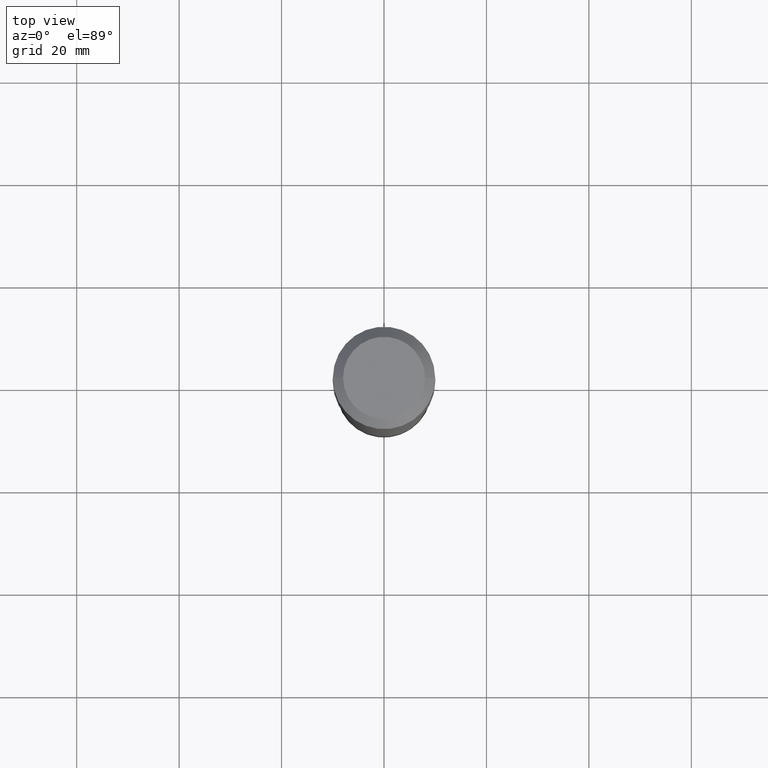
[diagram: clean part render]
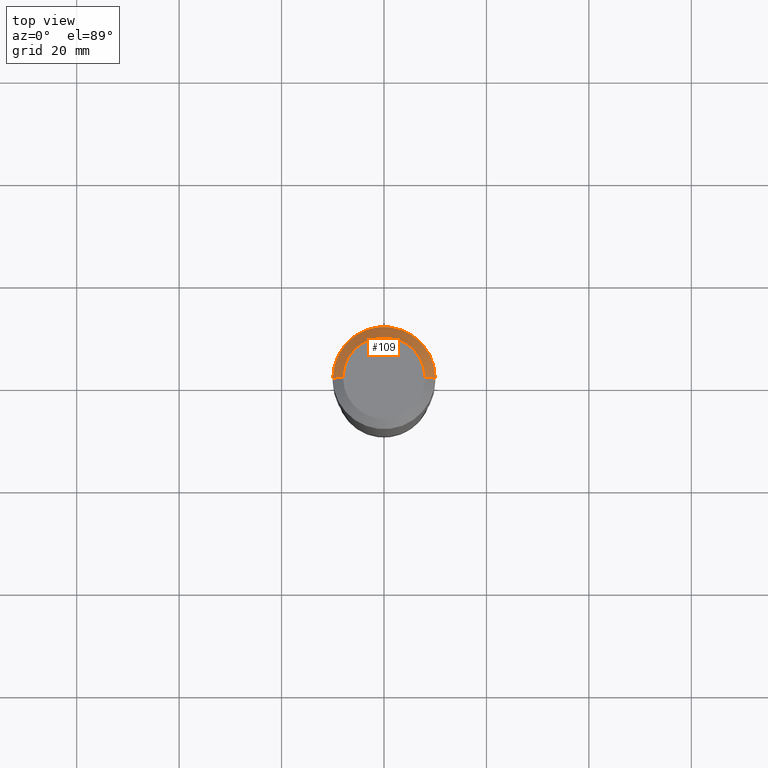
[diagram: same view with one face highlighted and labeled with its STEP entity id]
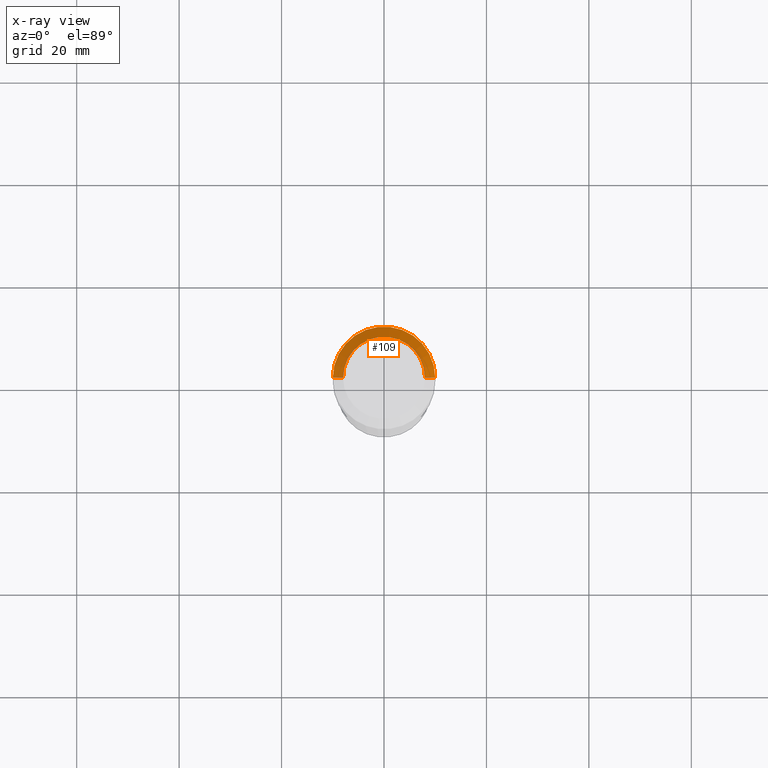
[diagram: x-ray of the same camera — body ghosted, the highlighted face saturated]
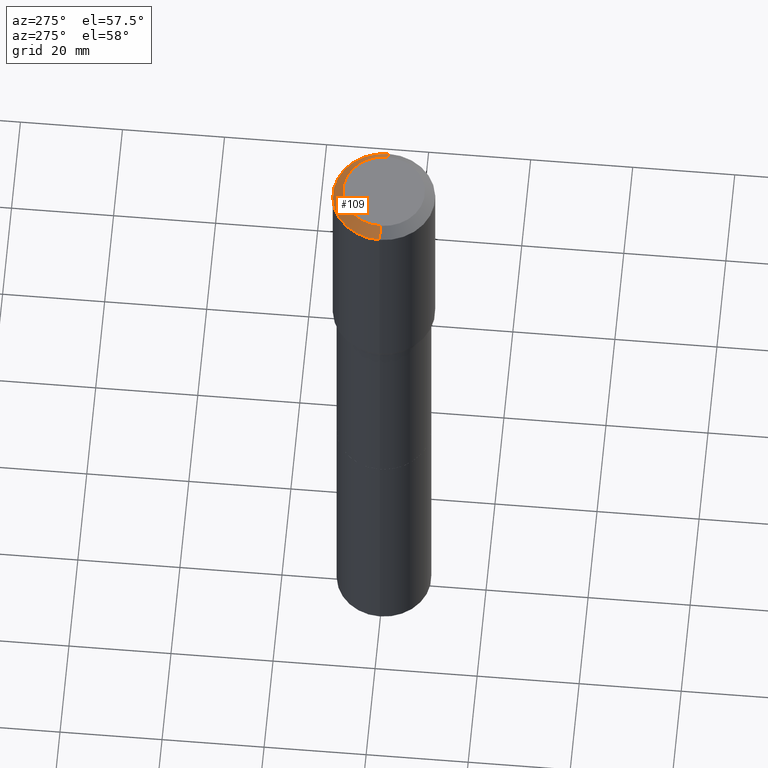
[diagram: same view with one face highlighted and labeled with its STEP entity id]
A machine part, top view. The second image highlights one B-rep face of the part: STEP entity #109.
The next image is the same camera in x-ray: the body ghosted, the highlighted face saturated — about 0% of this face is hidden behind the body in this view.
A second angle (auxiliary view) of the same face is appended — the face is thin or edge-on in the first view.
In plain terms, the highlighted conical surface has half-angle 45 deg.
Its self-contained STEP definition (entity closure, byte-faithful):
#6 = CARTESIAN_POINT ( 'NONE',  ( -0.3937000000000000499, 2.474273165584572449E-15, -0.07874000000000053179 ) ) ;
#10 = LINE ( 'NONE', #6, #250 ) ;
#53 = CARTESIAN_POINT ( 'NONE',  ( 1.925562137990189780E-30, -2.749192406205111123E-16, -0.07874000000000053179 ) ) ;
#71 = EDGE_CURVE ( 'NONE', #114, #212, #335, .T. ) ;
#93 = CARTESIAN_POINT ( 'NONE',  ( 1.925562137990189780E-30, -2.749192406205111123E-16, -0.07874000000000053179 ) ) ;
#95 = DIRECTION ( 'NONE',  ( 0.7071067811865452413, -7.319954787623248157E-15, -0.7071067811865497932 ) ) ;
#109 = ADVANCED_FACE ( 'NONE', ( #458 ), #505, .T. ) ;
#114 = VERTEX_POINT ( 'NONE', #375 ) ;
#120 = DIRECTION ( 'NONE',  ( -0.7071067811865452413, 2.468850131082233000E-15, -0.7071067811865497932 ) ) ;
#121 = ORIENTED_EDGE ( 'NONE', *, *, #182, .T. ) ;
#172 = AXIS2_PLACEMENT_3D ( 'NONE', #444, #490, #377 ) ;
#177 = CARTESIAN_POINT ( 'NONE',  ( 0.3937000000000000499, -2.975897302343163203E-15, -0.07874000000000053179 ) ) ;
#182 = EDGE_CURVE ( 'NONE', #212, #429, #487, .T. ) ;
#198 = ORIENTED_EDGE ( 'NONE', *, *, #254, .F. ) ;
#211 = CIRCLE ( 'NONE', #172, 0.3149600000000000177 ) ;
#212 = VERTEX_POINT ( 'NONE', #332 ) ;
#234 = CARTESIAN_POINT ( 'NONE',  ( -0.3149600000000000177, 2.336813545274319235E-15, 3.855188123700009542E-18 ) ) ;
#250 = VECTOR ( 'NONE', #120, 39.37007874015748143 ) ;
#254 = EDGE_CURVE ( 'NONE', #425, #429, #10, .T. ) ;
#264 = DIRECTION ( 'NONE',  ( 2.445468806185136597E-29, -3.491481338843145583E-15, -1.000000000000000000 ) ) ;
#288 = ORIENTED_EDGE ( 'NONE', *, *, #71, .T. ) ;
#292 = DIRECTION ( 'NONE',  ( 1.000000000000000000, -6.982962677686265922E-15, 0.000000000000000000 ) ) ;
#332 = CARTESIAN_POINT ( 'NONE',  ( 0.3937000000000000499, -3.024111646825594378E-15, -0.07874000000000053179 ) ) ;
#335 = LINE ( 'NONE', #177, #354 ) ;
#354 = VECTOR ( 'NONE', #95, 39.37007874015748143 ) ;
#362 = AXIS2_PLACEMENT_3D ( 'NONE', #53, #264, #485 ) ;
#374 = AXIS2_PLACEMENT_3D ( 'NONE', #93, #484, #292 ) ;
#375 = CARTESIAN_POINT ( 'NONE',  ( 0.3149600000000000177, -2.568339875860642378E-15, 3.855188123732540039E-18 ) ) ;
#377 = DIRECTION ( 'NONE',  ( 1.000000000000000000, -6.982962677686265922E-15, 4.876223630392693006E-29 ) ) ;
#425 = VERTEX_POINT ( 'NONE', #234 ) ;
#429 = VERTEX_POINT ( 'NONE', #511 ) ;
#431 = EDGE_LOOP ( 'NONE', ( #433, #288, #121, #198 ) ) ;
#433 = ORIENTED_EDGE ( 'NONE', *, *, #495, .F. ) ;
#444 = CARTESIAN_POINT ( 'NONE',  ( -9.427742298522567634E-47, 1.346031739168368355E-32, 3.855188123715870730E-18 ) ) ;
#458 = FACE_OUTER_BOUND ( 'NONE', #431, .T. ) ;
#484 = DIRECTION ( 'NONE',  ( -2.445468806185136597E-29, 3.491481338843145583E-15, 1.000000000000000000 ) ) ;
#485 = DIRECTION ( 'NONE',  ( -1.000000000000000000, 6.982962677686265922E-15, 0.000000000000000000 ) ) ;
#487 = CIRCLE ( 'NONE', #374, 0.3937000000000000499 ) ;
#490 = DIRECTION ( 'NONE',  ( -2.445468806185136597E-29, 3.491481338843145583E-15, 1.000000000000000000 ) ) ;
#495 = EDGE_CURVE ( 'NONE', #114, #425, #211, .T. ) ;
#505 = CONICAL_SURFACE ( 'NONE', #362, 0.3937000000000000499, 0.7853981633974450594 ) ;
#511 = CARTESIAN_POINT ( 'NONE',  ( -0.3937000000000000499, -3.228230495727162821E-16, -0.07874000000000053179 ) ) ;